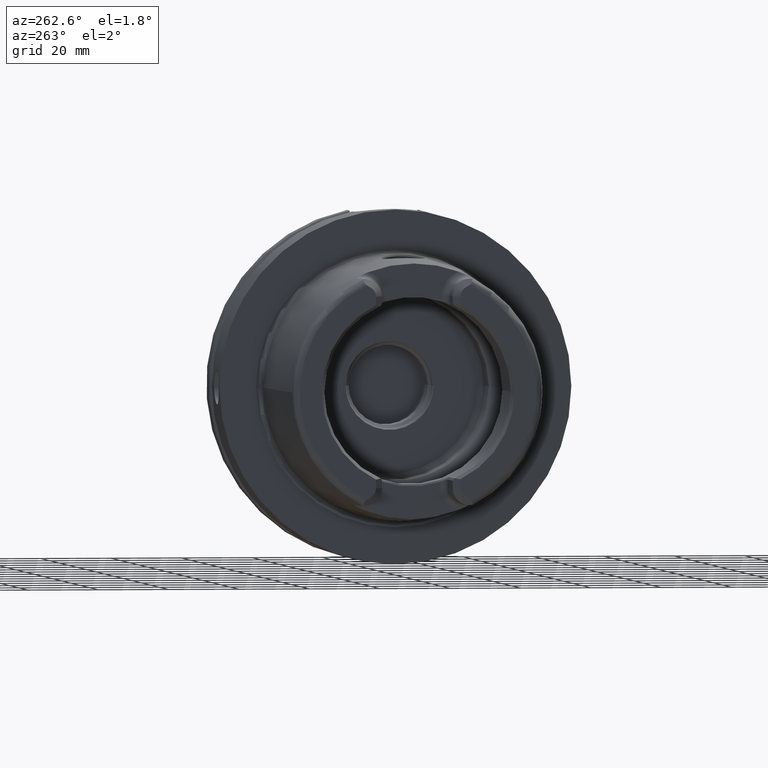
[diagram: clean part render]
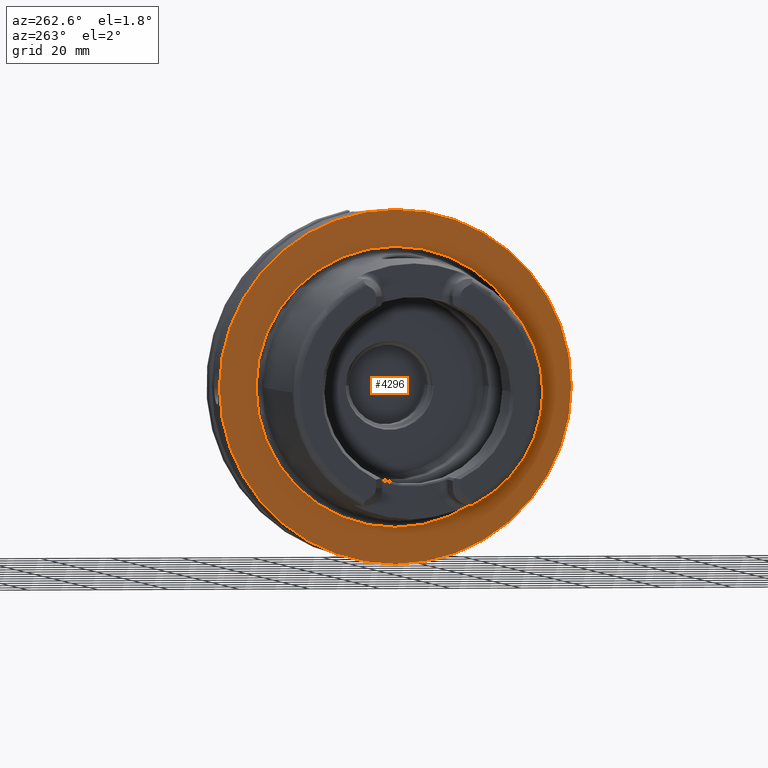
[diagram: same view with one face highlighted and labeled with its STEP entity id]
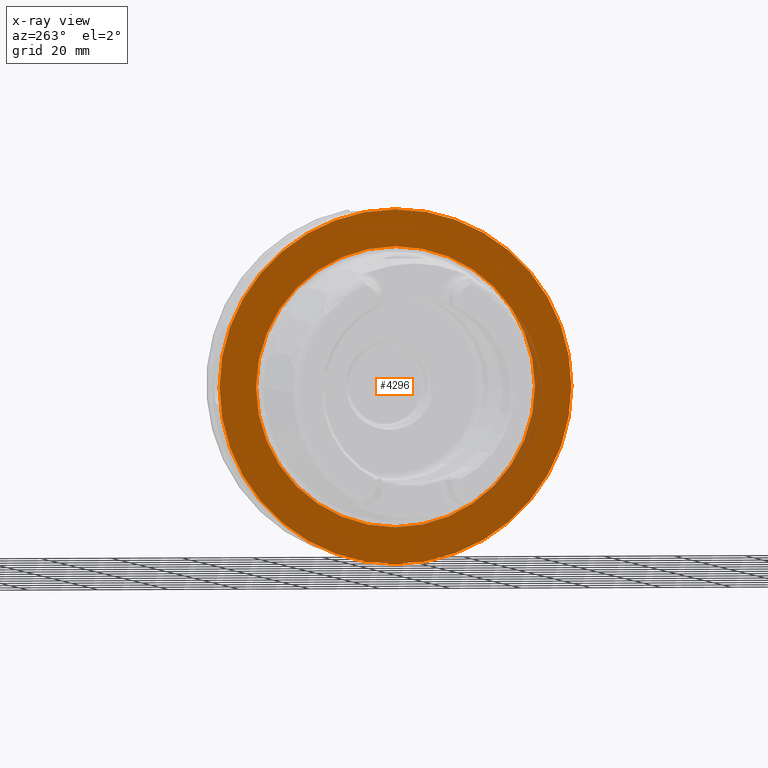
[diagram: x-ray of the same camera — body ghosted, the highlighted face saturated]
A machine part, auxiliary view. The second image highlights one B-rep face of the part: STEP entity #4296.
The next image is the same camera in x-ray: the body ghosted, the highlighted face saturated — about 4% of this face is hidden behind the body in this view.
In plain terms, the highlighted planar face has unit normal (1, 0, 0).
Its self-contained STEP definition (entity closure, byte-faithful):
#905=CARTESIAN_POINT('',(2.842170943040E-14,0.E0,0.E0));
#906=DIRECTION('',(1.E0,0.E0,0.E0));
#907=DIRECTION('',(0.E0,1.E0,0.E0));
#908=AXIS2_PLACEMENT_3D('',#905,#906,#907);
#910=CARTESIAN_POINT('',(2.842170943040E-14,0.E0,0.E0));
#911=DIRECTION('',(-1.E0,0.E0,0.E0));
#912=DIRECTION('',(0.E0,1.E0,0.E0));
#913=AXIS2_PLACEMENT_3D('',#910,#911,#912);
#915=CARTESIAN_POINT('',(0.E0,0.E0,0.E0));
#916=DIRECTION('',(-1.E0,0.E0,0.E0));
#917=DIRECTION('',(0.E0,-1.E0,0.E0));
#918=AXIS2_PLACEMENT_3D('',#915,#916,#917);
#920=CARTESIAN_POINT('',(0.E0,0.E0,0.E0));
#921=DIRECTION('',(-1.E0,0.E0,0.E0));
#922=DIRECTION('',(0.E0,1.E0,0.E0));
#923=AXIS2_PLACEMENT_3D('',#920,#921,#922);
#2851=CARTESIAN_POINT('',(2.842170943040E-14,5.E1,0.E0));
#2852=CARTESIAN_POINT('',(2.842170943040E-14,-5.E1,0.E0));
#2853=VERTEX_POINT('',#2851);
#2854=VERTEX_POINT('',#2852);
#2879=CARTESIAN_POINT('',(0.E0,-3.963225E1,0.E0));
#2880=VERTEX_POINT('',#2879);
#2881=CARTESIAN_POINT('',(0.E0,3.963225E1,0.E0));
#2882=VERTEX_POINT('',#2881);
#4281=CARTESIAN_POINT('',(0.E0,0.E0,0.E0));
#4282=DIRECTION('',(1.E0,0.E0,0.E0));
#4283=DIRECTION('',(0.E0,-1.E0,0.E0));
#4284=AXIS2_PLACEMENT_3D('',#4281,#4282,#4283);
#4285=PLANE('',#4284);
#4287=ORIENTED_EDGE('',*,*,#4286,.T.);
#4289=ORIENTED_EDGE('',*,*,#4288,.F.);
#4290=EDGE_LOOP('',(#4287,#4289));
#4291=FACE_OUTER_BOUND('',#4290,.F.);
#4292=ORIENTED_EDGE('',*,*,#4276,.T.);
#4293=ORIENTED_EDGE('',*,*,#4260,.T.);
#4294=EDGE_LOOP('',(#4292,#4293));
#4295=FACE_BOUND('',#4294,.F.);
#4296=ADVANCED_FACE('',(#4291,#4295),#4285,.F.);
#909=CIRCLE('',#908,5.E1);
#914=CIRCLE('',#913,5.E1);
#919=CIRCLE('',#918,3.963225E1);
#924=CIRCLE('',#923,3.963225E1);
#4260=EDGE_CURVE('',#2882,#2880,#924,.T.);
#4276=EDGE_CURVE('',#2880,#2882,#919,.T.);
#4286=EDGE_CURVE('',#2853,#2854,#909,.T.);
#4288=EDGE_CURVE('',#2853,#2854,#914,.T.);